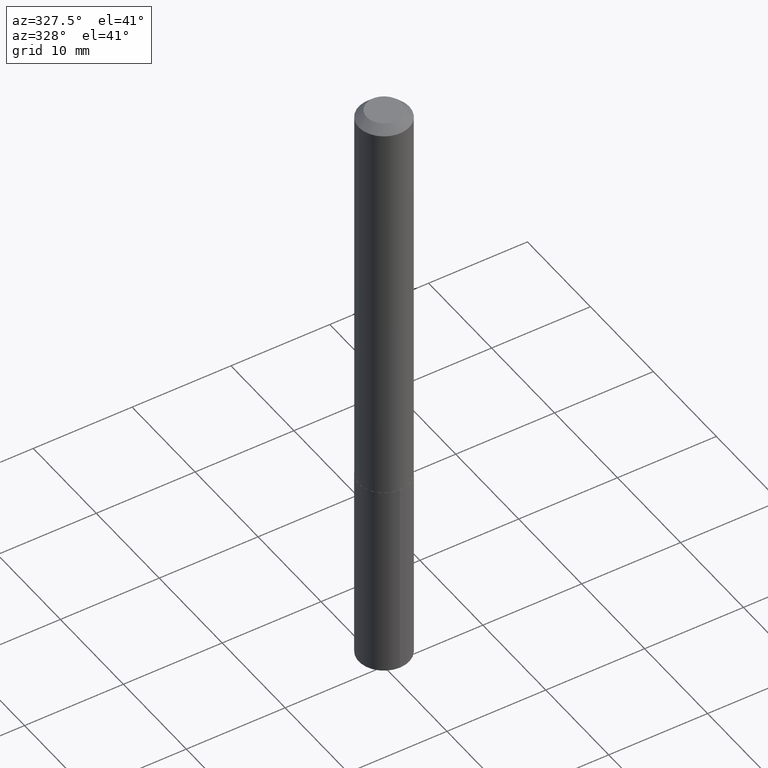
[diagram: clean part render]
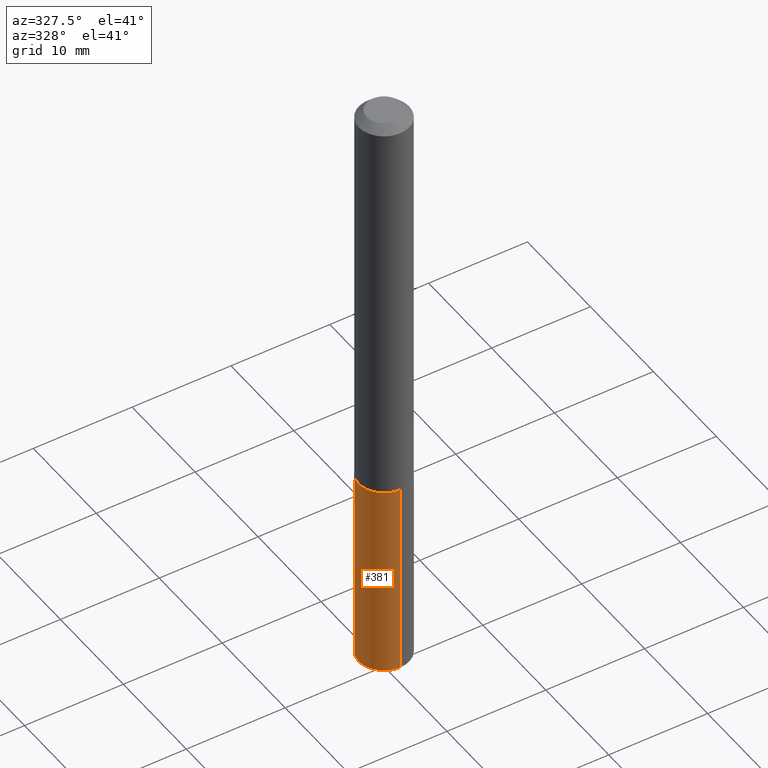
[diagram: same view with one face highlighted and labeled with its STEP entity id]
A machine part, auxiliary view. The second image highlights one B-rep face of the part: STEP entity #381.
In plain terms, the highlighted cylindrical surface (edge-blend (fillet) strip) has radius 2.5502 mm, axis along (-0, 0, 1).
Its self-contained STEP definition (entity closure, byte-faithful):
#9 = EDGE_CURVE ( 'NONE', #370, #316, #155, .T. ) ;
#22 = CIRCLE ( 'NONE', #241, 0.1004000000000000031 ) ;
#27 = EDGE_CURVE ( 'NONE', #139, #370, #135, .T. ) ;
#39 = CARTESIAN_POINT ( 'NONE',  ( 7.133849067031800519E-16, 0.1003999999999943549, -1.618100000000000316 ) ) ;
#42 = EDGE_CURVE ( 'NONE', #139, #195, #22, .T. ) ;
#58 = DIRECTION ( 'NONE',  ( -2.445476300407817820E-29, 3.491470606689721326E-15, 1.000000000000000000 ) ) ;
#67 = CARTESIAN_POINT ( 'NONE',  ( -7.010894528396423066E-16, -0.1004000000000084408, -2.409244001596550167 ) ) ;
#78 = CARTESIAN_POINT ( 'NONE',  ( -7.010894528396616337E-16, -0.1004000000000056514, -1.618099999999999872 ) ) ;
#80 = CARTESIAN_POINT ( 'NONE',  ( 7.133849067031995762E-16, 0.1003999999999943549, -1.618100000000000316 ) ) ;
#83 = ORIENTED_EDGE ( 'NONE', *, *, #27, .F. ) ;
#98 = ORIENTED_EDGE ( 'NONE', *, *, #42, .T. ) ;
#101 = CARTESIAN_POINT ( 'NONE',  ( 5.891736981402338159E-29, -8.411821981615335412E-15, -2.409244001596550611 ) ) ;
#104 = VECTOR ( 'NONE', #278, 39.37007874015748143 ) ;
#135 = LINE ( 'NONE', #39, #158 ) ;
#139 = VERTEX_POINT ( 'NONE', #301 ) ;
#155 = CIRCLE ( 'NONE', #368, 0.1004000000000000031 ) ;
#156 = AXIS2_PLACEMENT_3D ( 'NONE', #202, #230, #199 ) ;
#158 = VECTOR ( 'NONE', #224, 39.37007874015748143 ) ;
#159 = LINE ( 'NONE', #297, #104 ) ;
#175 = DIRECTION ( 'NONE',  ( -6.982962677686266711E-15, -1.000000000000000000, 2.720964137115799877E-15 ) ) ;
#195 = VERTEX_POINT ( 'NONE', #67 ) ;
#197 = ORIENTED_EDGE ( 'NONE', *, *, #9, .F. ) ;
#199 = DIRECTION ( 'NONE',  ( -6.982962677686266711E-15, -1.000000000000000000, 2.720964137115799877E-15 ) ) ;
#202 = CARTESIAN_POINT ( 'NONE',  ( 3.957013075288169897E-29, -5.649565954382093886E-15, -1.618100000000000094 ) ) ;
#224 = DIRECTION ( 'NONE',  ( -2.445476300407817820E-29, 3.491470606689721721E-15, 1.000000000000000000 ) ) ;
#227 = EDGE_CURVE ( 'NONE', #195, #316, #159, .T. ) ;
#230 = DIRECTION ( 'NONE',  ( -2.445476300407817820E-29, 3.491470606689721326E-15, 1.000000000000000000 ) ) ;
#234 = FACE_OUTER_BOUND ( 'NONE', #247, .T. ) ;
#241 = AXIS2_PLACEMENT_3D ( 'NONE', #101, #372, #378 ) ;
#247 = EDGE_LOOP ( 'NONE', ( #83, #98, #286, #197 ) ) ;
#278 = DIRECTION ( 'NONE',  ( -2.445476300407817820E-29, 3.491470606689721721E-15, 1.000000000000000000 ) ) ;
#286 = ORIENTED_EDGE ( 'NONE', *, *, #227, .T. ) ;
#297 = CARTESIAN_POINT ( 'NONE',  ( -7.010894528396616337E-16, -0.1004000000000056514, -1.618099999999999872 ) ) ;
#301 = CARTESIAN_POINT ( 'NONE',  ( 7.133849067031996748E-16, 0.1003999999999916209, -2.409244001596551055 ) ) ;
#316 = VERTEX_POINT ( 'NONE', #78 ) ;
#323 = CARTESIAN_POINT ( 'NONE',  ( 3.957013075288169897E-29, -5.649565954382093886E-15, -1.618100000000000094 ) ) ;
#343 = CYLINDRICAL_SURFACE ( 'NONE', #156, 0.1004000000000000031 ) ;
#368 = AXIS2_PLACEMENT_3D ( 'NONE', #323, #58, #175 ) ;
#370 = VERTEX_POINT ( 'NONE', #80 ) ;
#372 = DIRECTION ( 'NONE',  ( -2.445476300407817820E-29, 3.491470606689721326E-15, 1.000000000000000000 ) ) ;
#378 = DIRECTION ( 'NONE',  ( -6.982962677686266711E-15, -1.000000000000000000, 2.720964137115799877E-15 ) ) ;
#381 = ADVANCED_FACE ( 'NONE', ( #234 ), #343, .T. ) ;